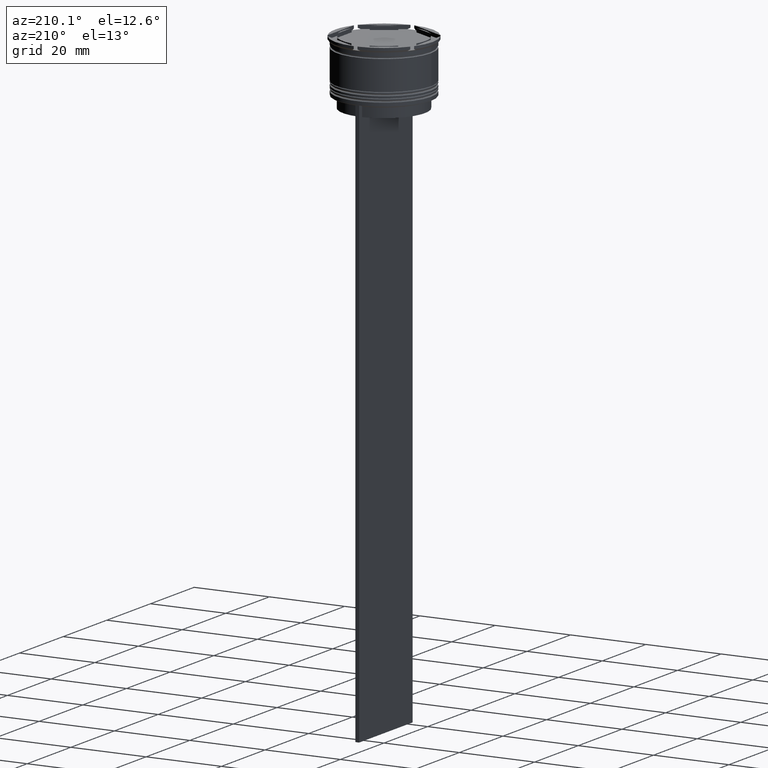
[diagram: clean part render]
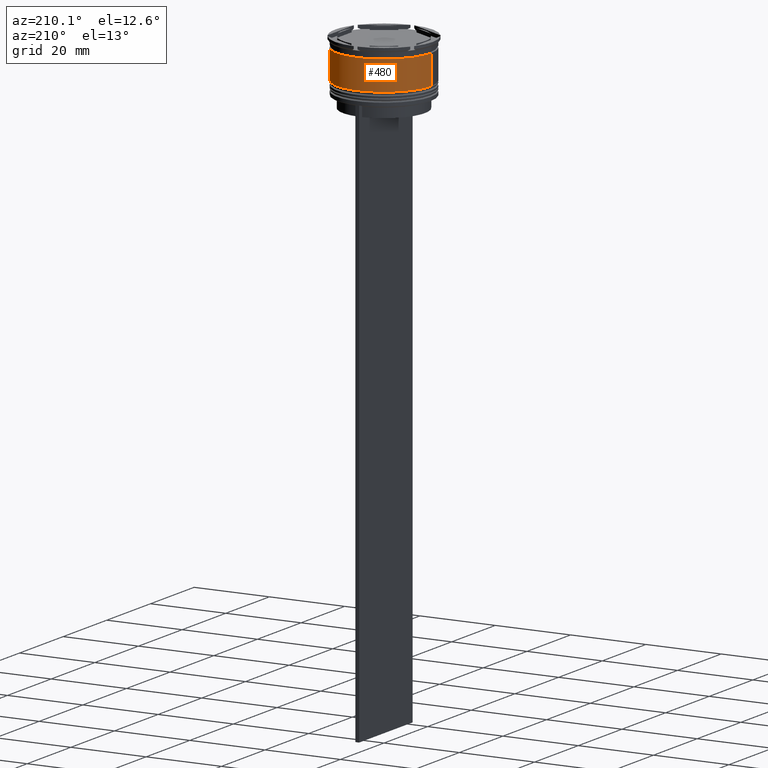
[diagram: same view with one face highlighted and labeled with its STEP entity id]
A machine part, auxiliary view. The second image highlights one B-rep face of the part: STEP entity #480.
In plain terms, the highlighted cylindrical surface (partial cylindrical patch) has radius 12.5 mm, axis along (-0, -0, 1).
Its self-contained STEP definition (entity closure, byte-faithful):
#28 = DIRECTION ( 'NONE',  ( 1.000000000000000000, 0.000000000000000000, 0.000000000000000000 ) ) ;
#56 = LINE ( 'NONE', #1115, #524 ) ;
#138 = ORIENTED_EDGE ( 'NONE', *, *, #1660, .F. ) ;
#255 = CARTESIAN_POINT ( 'NONE',  ( 0.000000000000000000, 0.000000000000000000, -10.50000000000000178 ) ) ;
#287 = EDGE_LOOP ( 'NONE', ( #2632, #2347, #138, #2484 ) ) ;
#312 = DIRECTION ( 'NONE',  ( 1.000000000000000000, 0.000000000000000000, 0.000000000000000000 ) ) ;
#403 = VERTEX_POINT ( 'NONE', #553 ) ;
#408 = DIRECTION ( 'NONE',  ( -0.000000000000000000, -0.000000000000000000, 1.000000000000000000 ) ) ;
#449 = DIRECTION ( 'NONE',  ( -0.000000000000000000, -0.000000000000000000, 1.000000000000000000 ) ) ;
#480 = ADVANCED_FACE ( 'NONE', ( #1498 ), #1688, .T. ) ;
#524 = VECTOR ( 'NONE', #2419, 1000.000000000000000 ) ;
#553 = CARTESIAN_POINT ( 'NONE',  ( 12.49999999999999822, 0.000000000000000000, -2.699999999999999289 ) ) ;
#567 = CARTESIAN_POINT ( 'NONE',  ( -12.50000000000000355, 1.530808498934191916E-15, -10.50000000000000178 ) ) ;
#695 = AXIS2_PLACEMENT_3D ( 'NONE', #1570, #1597, #312 ) ;
#717 = DIRECTION ( 'NONE',  ( -0.000000000000000000, -0.000000000000000000, 1.000000000000000000 ) ) ;
#760 = LINE ( 'NONE', #987, #2642 ) ;
#790 = AXIS2_PLACEMENT_3D ( 'NONE', #255, #449, #28 ) ;
#987 = CARTESIAN_POINT ( 'NONE',  ( 12.50000000000000000, 0.000000000000000000, 0.000000000000000000 ) ) ;
#1115 = CARTESIAN_POINT ( 'NONE',  ( -12.50000000000000000, 1.530808498934191521E-15, 0.000000000000000000 ) ) ;
#1498 = FACE_OUTER_BOUND ( 'NONE', #287, .T. ) ;
#1570 = CARTESIAN_POINT ( 'NONE',  ( 0.000000000000000000, 0.000000000000000000, -2.699999999999999289 ) ) ;
#1586 = EDGE_CURVE ( 'NONE', #2471, #403, #760, .T. ) ;
#1597 = DIRECTION ( 'NONE',  ( -0.000000000000000000, -0.000000000000000000, 1.000000000000000000 ) ) ;
#1654 = VERTEX_POINT ( 'NONE', #2712 ) ;
#1660 = EDGE_CURVE ( 'NONE', #403, #1654, #1738, .T. ) ;
#1688 = CYLINDRICAL_SURFACE ( 'NONE', #2134, 12.50000000000000000 ) ;
#1702 = DIRECTION ( 'NONE',  ( 1.000000000000000000, 0.000000000000000000, 0.000000000000000000 ) ) ;
#1738 = CIRCLE ( 'NONE', #695, 12.49999999999999822 ) ;
#1848 = EDGE_CURVE ( 'NONE', #2471, #2542, #2279, .T. ) ;
#1896 = CARTESIAN_POINT ( 'NONE',  ( 0.000000000000000000, 0.000000000000000000, 0.000000000000000000 ) ) ;
#2030 = CARTESIAN_POINT ( 'NONE',  ( 12.50000000000000178, 0.000000000000000000, -10.50000000000000178 ) ) ;
#2134 = AXIS2_PLACEMENT_3D ( 'NONE', #1896, #408, #1702 ) ;
#2279 = CIRCLE ( 'NONE', #790, 12.50000000000000178 ) ;
#2347 = ORIENTED_EDGE ( 'NONE', *, *, #2388, .T. ) ;
#2388 = EDGE_CURVE ( 'NONE', #2542, #1654, #56, .T. ) ;
#2419 = DIRECTION ( 'NONE',  ( -0.000000000000000000, -0.000000000000000000, 1.000000000000000000 ) ) ;
#2471 = VERTEX_POINT ( 'NONE', #2030 ) ;
#2484 = ORIENTED_EDGE ( 'NONE', *, *, #1586, .F. ) ;
#2542 = VERTEX_POINT ( 'NONE', #567 ) ;
#2632 = ORIENTED_EDGE ( 'NONE', *, *, #1848, .T. ) ;
#2642 = VECTOR ( 'NONE', #717, 1000.000000000000000 ) ;
#2712 = CARTESIAN_POINT ( 'NONE',  ( -12.49999999999999822, 1.530808498934191324E-15, -2.699999999999999289 ) ) ;